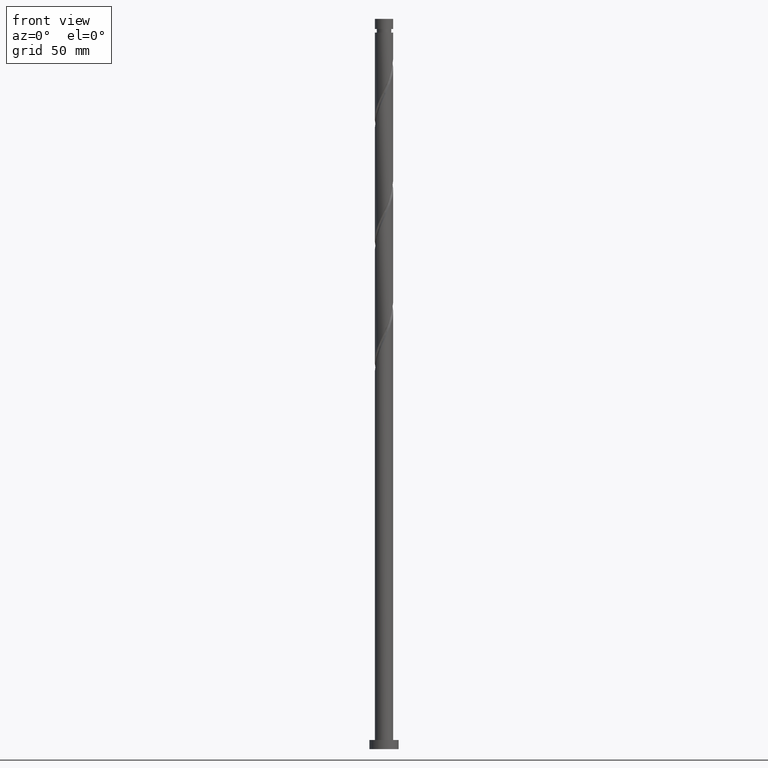
[diagram: clean part render]
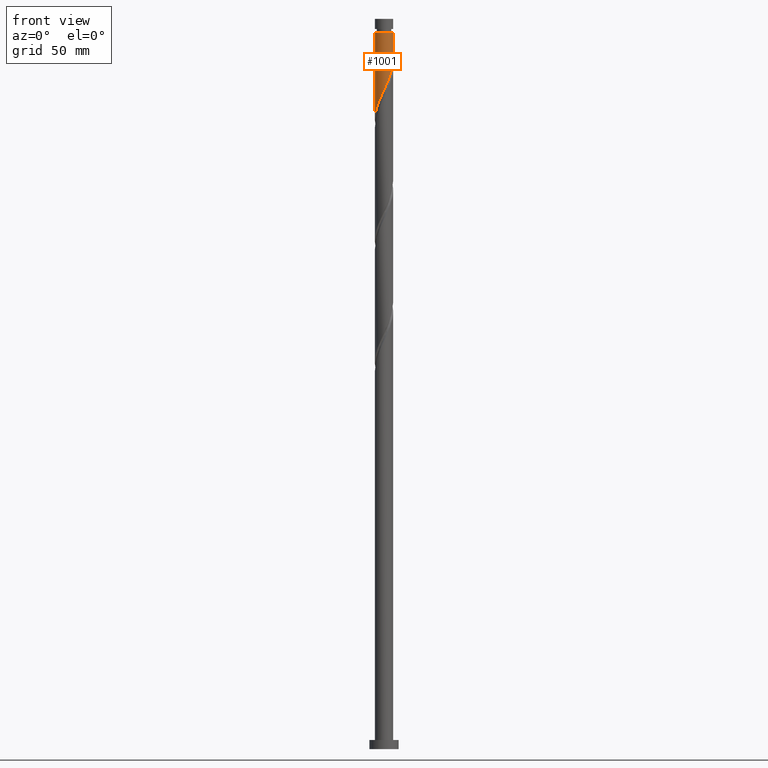
[diagram: same view with one face highlighted and labeled with its STEP entity id]
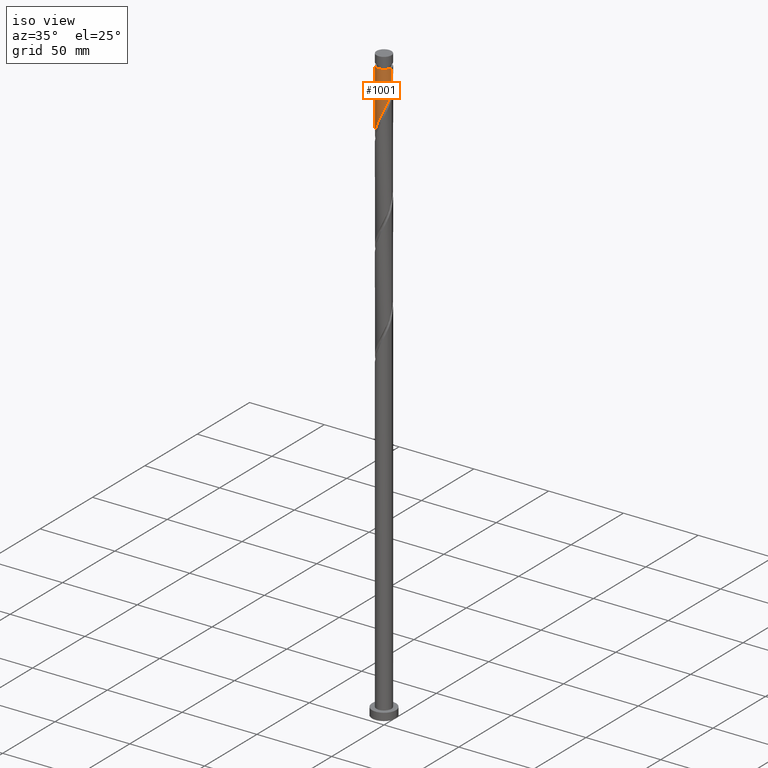
[diagram: same view with one face highlighted and labeled with its STEP entity id]
A machine part, front view. The second image highlights one B-rep face of the part: STEP entity #1001.
A second angle (iso view) of the same face is appended — the face is thin or edge-on in the first view.
In plain terms, the highlighted cylindrical surface (edge-blend (fillet) strip) has radius 5 mm, axis along (-0, -0, -1).
Its self-contained STEP definition (entity closure, byte-faithful):
#6 = CARTESIAN_POINT ( 'NONE',  ( 1.084043297491209756, -4.881070592520090123, 363.5806079547348872 ) ) ;
#20 = EDGE_LOOP ( 'NONE', ( #1211, #539, #499, #486 ) ) ;
#24 =( BOUNDED_CURVE ( )  B_SPLINE_CURVE ( 2, ( #97, #727, #234, #541, #564, #1190, #1031, #1660, #257, #1505, #602, #1080, #933, #1680, #6, #123, #1867, #760, #1838, #2013, #1552, #1247, #1535, #446, #150, #1998, #1719, #771, #439, #279, #463, #925, #1392 ),
 .UNSPECIFIED., .F., .T. ) 
 B_SPLINE_CURVE_WITH_KNOTS ( ( 3, 2, 2, 2, 2, 2, 2, 2, 2, 2, 2, 2, 2, 2, 2, 2, 3 ),
 ( 0.3045286012773114059, 0.3083333333333333481, 0.3166666666666666519, 0.3250000000000000111, 0.3333333333333333148, 0.3416666666666666741, 0.3499999999999999778, 0.3583333333333333370, 0.3666666666666666408, 0.3750000000000000000, 0.3833333333333333592, 0.3916666666666666630, 0.4000000000000000222, 0.4083333333333333259, 0.4166666666666666852, 0.4249999999999999889, 0.4295286012773114059 ),
 .UNSPECIFIED. ) 
 CURVE ( )  GEOMETRIC_REPRESENTATION_ITEM ( )  RATIONAL_B_SPLINE_CURVE ( ( 0.9066196499552259258, 0.9068171577856385390, 0.9090909090909374823, 0.9041108139711858671, 0.9090909090909374823, 0.9041108139711858671, 0.9090909090909374823, 0.9041108139711858671, 0.9090909090909374823, 0.9041108139711858671, 0.9090909090909374823, 0.9041108139711858671, 0.9090909090909374823, 0.9041108139711858671, 0.9090909090909374823, 0.9041108139711858671, 0.9090909090909374823, 0.9041108139711858671, 0.9090909090909374823, 0.9041108139711858671, 0.9090909090909374823, 0.9041108139711858671, 0.9090909090909374823, 0.9041108139711858671, 0.9090909090909374823, 0.9041108139711858671, 0.9090909090909374823, 0.9041108139711858671, 0.9090909090909374823, 0.9041108139711858671, 0.9090909090909374823, 0.9063845652764848104, 0.9066196499552259258 ) ) 
 REPRESENTATION_ITEM ( '' )  );
#61 = CARTESIAN_POINT ( 'NONE',  ( 4.999999999999965361, 6.123233995736743603E-16, 392.4694968436237446 ) ) ;
#97 = CARTESIAN_POINT ( 'NONE',  ( 5.000000000000000000, 1.076285910287896098E-15, 377.9282734204786607 ) ) ;
#123 = CARTESIAN_POINT ( 'NONE',  ( 0.5710221055866048223, -4.995008134297783009, 362.4694968436236877 ) ) ;
#150 = CARTESIAN_POINT ( 'NONE',  ( -3.685109482041952766, -3.379344330689683318, 352.4694968436238014 ) ) ;
#234 = CARTESIAN_POINT ( 'NONE',  ( 4.977161795075916828, -0.4773473218074010815, 376.9139412880681448 ) ) ;
#257 = CARTESIAN_POINT ( 'NONE',  ( 3.746030759990436110, -3.311684396980710599, 370.2472746214016297 ) ) ;
#279 = CARTESIAN_POINT ( 'NONE',  ( -4.907956893912946761, -1.090014511032748823, 346.9139412880681448 ) ) ;
#439 = CARTESIAN_POINT ( 'NONE',  ( -4.741018197097063513, -1.588315603019291089, 348.0250523991793443 ) ) ;
#446 = CARTESIAN_POINT ( 'NONE',  ( -3.329926080465414273, -3.766664944669994686, 353.5806079547349441 ) ) ;
#463 = CARTESIAN_POINT ( 'NONE',  ( -4.967644957101774672, -0.5678939867451729961, 345.8028301769571158 ) ) ;
#486 = ORIENTED_EDGE ( 'NONE', *, *, #974, .F. ) ;
#499 = ORIENTED_EDGE ( 'NONE', *, *, #1860, .T. ) ;
#539 = ORIENTED_EDGE ( 'NONE', *, *, #1851, .T. ) ;
#541 = CARTESIAN_POINT ( 'NONE',  ( 4.926990569861231961, -1.000468106072395003, 375.8028301769571158 ) ) ;
#550 = LINE ( 'NONE', #1492, #1131 ) ;
#564 = CARTESIAN_POINT ( 'NONE',  ( 4.769152779533161635, -1.501726261830407028, 374.6917190658459162 ) ) ;
#587 = DIRECTION ( 'NONE',  ( -0.000000000000000000, -0.000000000000000000, -1.000000000000000000 ) ) ;
#596 = CARTESIAN_POINT ( 'NONE',  ( 0.000000000000000000, 0.000000000000000000, 400.0000000000000000 ) ) ;
#602 = CARTESIAN_POINT ( 'NONE',  ( 2.975633097728629828, -4.018159736459208986, 368.0250523991793443 ) ) ;
#620 = CARTESIAN_POINT ( 'NONE',  ( 5.000000000000000000, 1.076285910287896098E-15, 377.9282734204786607 ) ) ;
#646 = VERTEX_POINT ( 'NONE', #658 ) ;
#658 = CARTESIAN_POINT ( 'NONE',  ( -4.999999999999965361, 0.000000000000000000, 392.4694968436237446 ) ) ;
#697 = CARTESIAN_POINT ( 'NONE',  ( 5.000000000000000888, 6.123233995736766282E-16, 400.0000000000000000 ) ) ;
#727 = CARTESIAN_POINT ( 'NONE',  ( 5.000000000000001776, -0.2392199964337497486, 377.4197248949146228 ) ) ;
#760 = CARTESIAN_POINT ( 'NONE',  ( -0.4799766843048117737, -5.004577393676047592, 360.2472746214015160 ) ) ;
#771 = CARTESIAN_POINT ( 'NONE',  ( -4.574079500281179378, -2.086616695005834909, 349.1361635102903733 ) ) ;
#855 = DIRECTION ( 'NONE',  ( -1.000000000000000000, 0.000000000000000000, 0.000000000000000000 ) ) ;
#865 = CARTESIAN_POINT ( 'NONE',  ( 0.000000000000000000, 0.000000000000000000, 392.4694968436237446 ) ) ;
#890 = EDGE_CURVE ( 'NONE', #1484, #1073, #1985, .T. ) ;
#925 = CARTESIAN_POINT ( 'NONE',  ( -4.999999999999999112, -0.2848686872321636310, 345.2005313965298114 ) ) ;
#933 = CARTESIAN_POINT ( 'NONE',  ( 2.075185990424285531, -4.549022214184804014, 365.8028301769570589 ) ) ;
#974 = EDGE_CURVE ( 'NONE', #1073, #1274, #24, .T. ) ;
#1001 = ADVANCED_FACE ( 'NONE', ( #1061 ), #1413, .T. ) ;
#1007 = DIRECTION ( 'NONE',  ( -0.000000000000000000, -0.000000000000000000, -1.000000000000000000 ) ) ;
#1031 = CARTESIAN_POINT ( 'NONE',  ( 4.352708902590731732, -2.460472558129312315, 372.4694968436237446 ) ) ;
#1061 = FACE_OUTER_BOUND ( 'NONE', #20, .T. ) ;
#1073 = VERTEX_POINT ( 'NONE', #620 ) ;
#1080 = CARTESIAN_POINT ( 'NONE',  ( 2.553307491452752043, -4.330911377627212566, 366.9139412880682016 ) ) ;
#1131 = VECTOR ( 'NONE', #1007, 1000.000000000000000 ) ;
#1190 = CARTESIAN_POINT ( 'NONE',  ( 4.611314989205095749, -2.002984417588413280, 373.5806079547347736 ) ) ;
#1211 = ORIENTED_EDGE ( 'NONE', *, *, #890, .F. ) ;
#1219 = DIRECTION ( 'NONE',  ( -0.000000000000000000, -0.000000000000000000, -1.000000000000000000 ) ) ;
#1247 = CARTESIAN_POINT ( 'NONE',  ( -2.474025528837848320, -4.376684840084808847, 355.8028301769570021 ) ) ;
#1274 = VERTEX_POINT ( 'NONE', #1450 ) ;
#1368 = DIRECTION ( 'NONE',  ( -0.000000000000000000, -0.000000000000000000, -1.000000000000000000 ) ) ;
#1392 = CARTESIAN_POINT ( 'NONE',  ( -5.000000000000000000, -3.169064069181027015E-15, 344.5949400871452326 ) ) ;
#1413 = CYLINDRICAL_SURFACE ( 'NONE', #1942, 5.000000000000000888 ) ;
#1450 = CARTESIAN_POINT ( 'NONE',  ( -5.000000000000000000, -3.169064069181027409E-15, 344.5949400871452326 ) ) ;
#1484 = VERTEX_POINT ( 'NONE', #61 ) ;
#1492 = CARTESIAN_POINT ( 'NONE',  ( -5.000000000000000888, 0.000000000000000000, 400.0000000000000000 ) ) ;
#1505 = CARTESIAN_POINT ( 'NONE',  ( 3.397958704004506725, -3.705408095291204962, 369.1361635102903733 ) ) ;
#1535 = CARTESIAN_POINT ( 'NONE',  ( -2.901975804651633073, -4.071674892377402877, 354.6917190658460868 ) ) ;
#1552 = CARTESIAN_POINT ( 'NONE',  ( -1.992011859373145732, -4.586053723204382315, 356.9139412880682585 ) ) ;
#1660 = CARTESIAN_POINT ( 'NONE',  ( 4.094102815976365939, -2.917960698670215347, 371.3583857325126019 ) ) ;
#1680 = CARTESIAN_POINT ( 'NONE',  ( 1.597064489395816134, -4.767133050742391909, 364.6917190658460299 ) ) ;
#1690 = DIRECTION ( 'NONE',  ( -1.000000000000000000, 0.000000000000000000, 0.000000000000000000 ) ) ;
#1719 = CARTESIAN_POINT ( 'NONE',  ( -4.307186191949835319, -2.539320205857602097, 350.2472746214015729 ) ) ;
#1838 = CARTESIAN_POINT ( 'NONE',  ( -0.9949874371066248502, -4.900000000000001243, 359.1361635102905439 ) ) ;
#1844 = CIRCLE ( 'NONE', #2004, 4.999999999999965361 ) ;
#1851 = EDGE_CURVE ( 'NONE', #1484, #646, #1844, .T. ) ;
#1860 = EDGE_CURVE ( 'NONE', #646, #1274, #550, .T. ) ;
#1867 = CARTESIAN_POINT ( 'NONE',  ( 0.04552271064089660757, -4.999792763986913968, 361.3583857325126587 ) ) ;
#1910 = VECTOR ( 'NONE', #587, 1000.000000000000000 ) ;
#1942 = AXIS2_PLACEMENT_3D ( 'NONE', #596, #1219, #1690 ) ;
#1985 = LINE ( 'NONE', #697, #1910 ) ;
#1998 = CARTESIAN_POINT ( 'NONE',  ( -4.040292883618490372, -2.992023716709371062, 351.3583857325126019 ) ) ;
#2004 = AXIS2_PLACEMENT_3D ( 'NONE', #865, #1368, #855 ) ;
#2013 = CARTESIAN_POINT ( 'NONE',  ( -1.509998189908439814, -4.795422606323952230, 358.0250523991791738 ) ) ;